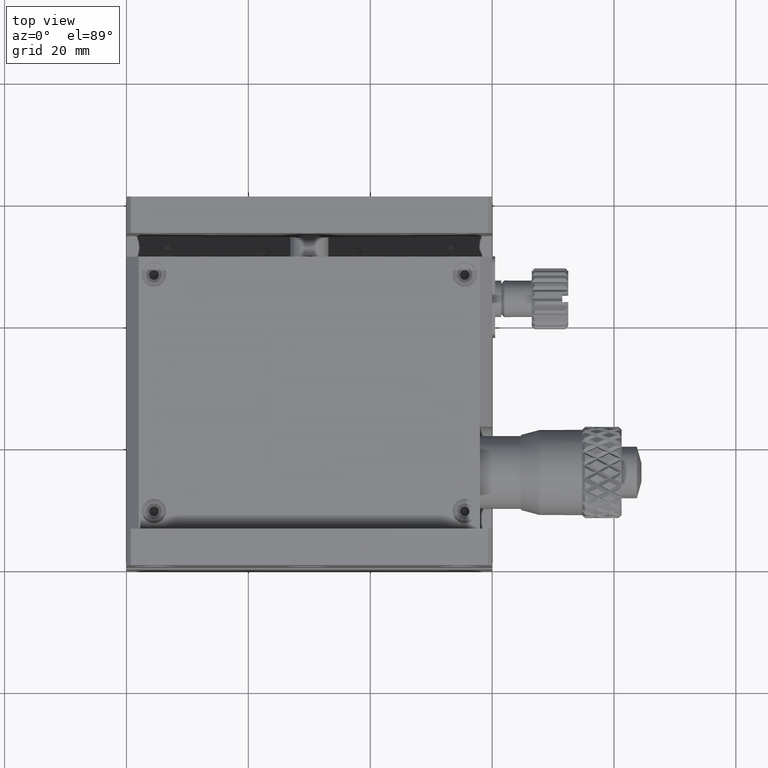
[diagram: clean part render]
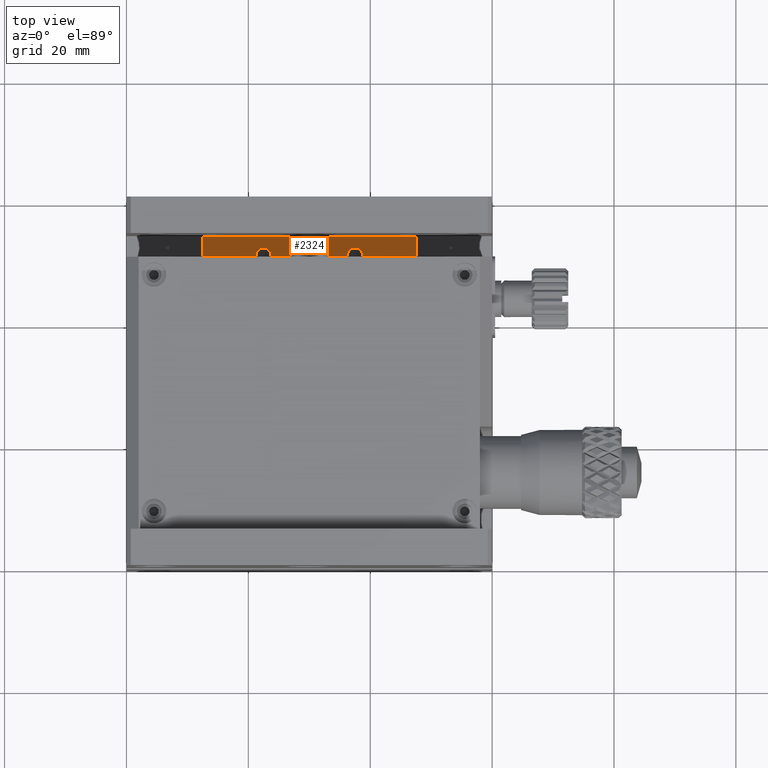
[diagram: same view with one face highlighted and labeled with its STEP entity id]
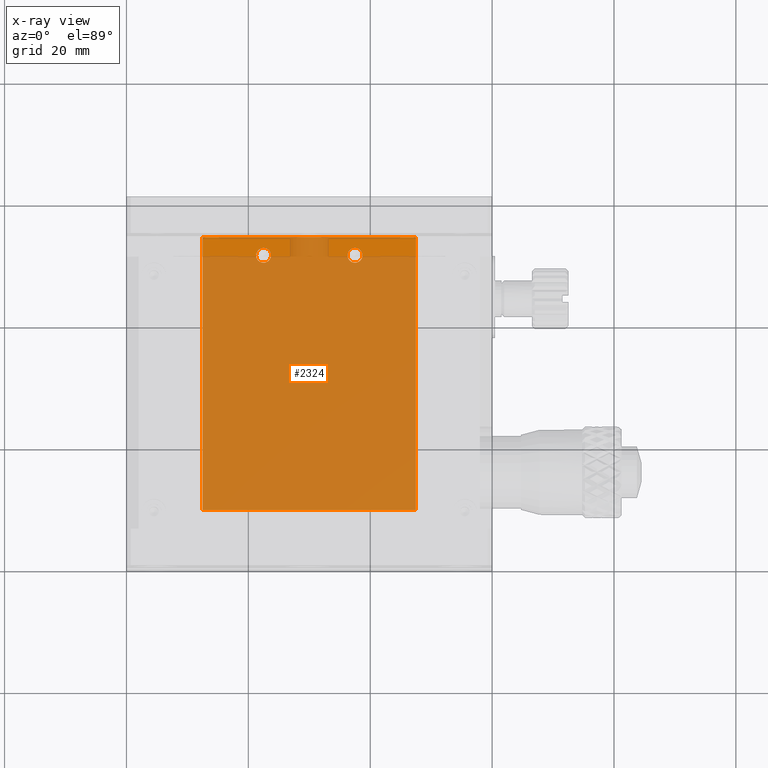
[diagram: x-ray of the same camera — body ghosted, the highlighted face saturated]
A machine part, top view. The second image highlights one B-rep face of the part: STEP entity #2324.
The next image is the same camera in x-ray: the body ghosted, the highlighted face saturated — about 94% of this face is hidden behind the body in this view.
In plain terms, the highlighted planar face has unit normal (0, 0, 1).
Its self-contained STEP definition (entity closure, byte-faithful):
#2182 = VERTEX_POINT ( 'NONE', #7436 ) ;
#2208 = AXIS2_PLACEMENT_3D ( 'NONE', #17323, #2636, #6469 ) ;
#2324 = ADVANCED_FACE ( 'NONE', ( #18712, #24920, #14345 ), #10255, .T. ) ;
#2636 = DIRECTION ( 'NONE',  ( -5.662911265683499973E-15, -0.000000000000000000, -1.000000000000000000 ) ) ;
#3608 = EDGE_CURVE ( 'NONE', #8636, #8636, #8712, .T. ) ;
#4722 = CARTESIAN_POINT ( 'NONE',  ( 12.50000000000000000, 9.700000000000001066, -37.79999999999999716 ) ) ;
#5490 = EDGE_CURVE ( 'NONE', #2182, #12985, #20663, .T. ) ;
#6080 = VECTOR ( 'NONE', #22091, 1000.000000000000000 ) ;
#6469 = DIRECTION ( 'NONE',  ( 1.000000000000000000, 0.000000000000000000, -5.643671332986759340E-15 ) ) ;
#6891 = EDGE_LOOP ( 'NONE', ( #11740, #8737, #20040, #21832 ) ) ;
#7101 = EDGE_CURVE ( 'NONE', #11578, #11578, #16615, .T. ) ;
#7435 = CARTESIAN_POINT ( 'NONE',  ( 47.50000000000000711, 54.50000000000000000, -37.79999999999999716 ) ) ;
#7436 = CARTESIAN_POINT ( 'NONE',  ( 47.50000000000000000, 9.700000000000001066, -37.79999999999999716 ) ) ;
#7861 = CARTESIAN_POINT ( 'NONE',  ( 12.50000000000000000, 9.700000000000001066, -37.79999999999999716 ) ) ;
#7878 = VERTEX_POINT ( 'NONE', #14278 ) ;
#8636 = VERTEX_POINT ( 'NONE', #14695 ) ;
#8712 = CIRCLE ( 'NONE', #24005, 1.229500000000001370 ) ;
#8737 = ORIENTED_EDGE ( 'NONE', *, *, #5490, .T. ) ;
#8932 = ORIENTED_EDGE ( 'NONE', *, *, #3608, .T. ) ;
#10255 = PLANE ( 'NONE',  #15768 ) ;
#11191 = EDGE_LOOP ( 'NONE', ( #12202 ) ) ;
#11195 = CARTESIAN_POINT ( 'NONE',  ( 0.000000000000000000, 54.50000000000000000, -37.79999999999999716 ) ) ;
#11578 = VERTEX_POINT ( 'NONE', #13554 ) ;
#11740 = ORIENTED_EDGE ( 'NONE', *, *, #16709, .F. ) ;
#12202 = ORIENTED_EDGE ( 'NONE', *, *, #7101, .T. ) ;
#12851 = VECTOR ( 'NONE', #19774, 1000.000000000000000 ) ;
#12985 = VERTEX_POINT ( 'NONE', #7435 ) ;
#13554 = CARTESIAN_POINT ( 'NONE',  ( 38.72950000000000159, 51.50000000000000000, -37.79999999999999716 ) ) ;
#14278 = CARTESIAN_POINT ( 'NONE',  ( 12.50000000000000178, 54.50000000000000000, -37.79999999999999716 ) ) ;
#14345 = FACE_BOUND ( 'NONE', #11191, .T. ) ;
#14369 = CARTESIAN_POINT ( 'NONE',  ( 22.50000000000000000, 51.50000000000000000, -37.79999999999999716 ) ) ;
#14462 = DIRECTION ( 'NONE',  ( -0.000000000000000000, 1.000000000000000000, 0.000000000000000000 ) ) ;
#14695 = CARTESIAN_POINT ( 'NONE',  ( 23.72950000000000159, 51.50000000000000000, -37.79999999999999716 ) ) ;
#14920 = CARTESIAN_POINT ( 'NONE',  ( 12.50000000000000000, 9.700000000000001066, -37.79999999999999716 ) ) ;
#15768 = AXIS2_PLACEMENT_3D ( 'NONE', #7861, #18428, #26908 ) ;
#16615 = CIRCLE ( 'NONE', #2208, 1.229500000000001370 ) ;
#16709 = EDGE_CURVE ( 'NONE', #2182, #20065, #21913, .T. ) ;
#17323 = CARTESIAN_POINT ( 'NONE',  ( 37.50000000000000000, 51.50000000000000000, -37.79999999999999005 ) ) ;
#18428 = DIRECTION ( 'NONE',  ( 0.000000000000000000, 0.000000000000000000, 1.000000000000000000 ) ) ;
#18712 = FACE_OUTER_BOUND ( 'NONE', #6891, .T. ) ;
#18783 = EDGE_CURVE ( 'NONE', #20065, #7878, #26881, .T. ) ;
#19774 = DIRECTION ( 'NONE',  ( -1.000000000000000000, -0.000000000000000000, 0.000000000000000000 ) ) ;
#20040 = ORIENTED_EDGE ( 'NONE', *, *, #20501, .T. ) ;
#20065 = VERTEX_POINT ( 'NONE', #14920 ) ;
#20144 = VECTOR ( 'NONE', #14462, 1000.000000000000000 ) ;
#20501 = EDGE_CURVE ( 'NONE', #12985, #7878, #24422, .T. ) ;
#20663 = LINE ( 'NONE', #21093, #20144 ) ;
#20862 = DIRECTION ( 'NONE',  ( -0.000000000000000000, -0.000000000000000000, -1.000000000000000000 ) ) ;
#21093 = CARTESIAN_POINT ( 'NONE',  ( 47.50000000000000000, 9.700000000000001066, -37.79999999999999716 ) ) ;
#21510 = CARTESIAN_POINT ( 'NONE',  ( 0.000000000000000000, 9.700000000000001066, -37.79999999999999716 ) ) ;
#21832 = ORIENTED_EDGE ( 'NONE', *, *, #18783, .F. ) ;
#21913 = LINE ( 'NONE', #21510, #26611 ) ;
#22091 = DIRECTION ( 'NONE',  ( -0.000000000000000000, 1.000000000000000000, 0.000000000000000000 ) ) ;
#23881 = DIRECTION ( 'NONE',  ( -1.000000000000000000, -0.000000000000000000, -0.000000000000000000 ) ) ;
#24005 = AXIS2_PLACEMENT_3D ( 'NONE', #14369, #20862, #27074 ) ;
#24422 = LINE ( 'NONE', #11195, #12851 ) ;
#24920 = FACE_BOUND ( 'NONE', #25049, .T. ) ;
#25049 = EDGE_LOOP ( 'NONE', ( #8932 ) ) ;
#26611 = VECTOR ( 'NONE', #23881, 1000.000000000000000 ) ;
#26881 = LINE ( 'NONE', #4722, #6080 ) ;
#26908 = DIRECTION ( 'NONE',  ( 1.000000000000000000, 0.000000000000000000, -0.000000000000000000 ) ) ;
#27074 = DIRECTION ( 'NONE',  ( 1.000000000000000000, 0.000000000000000000, 0.000000000000000000 ) ) ;